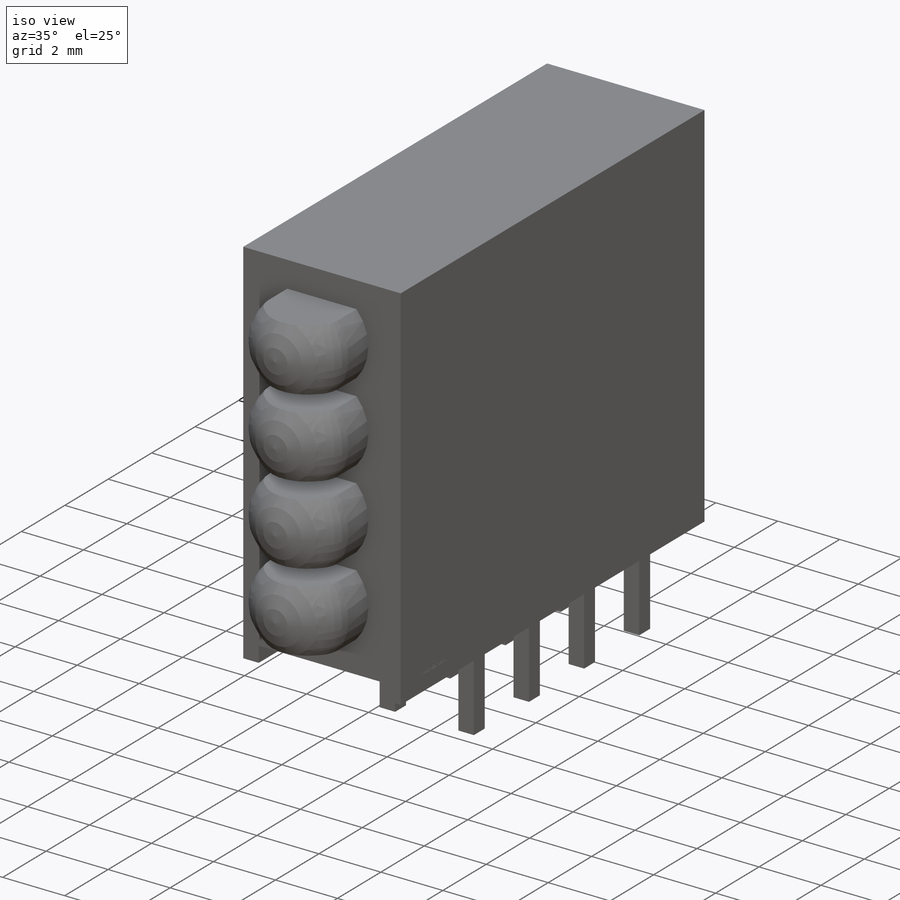
[diagram: iso view]
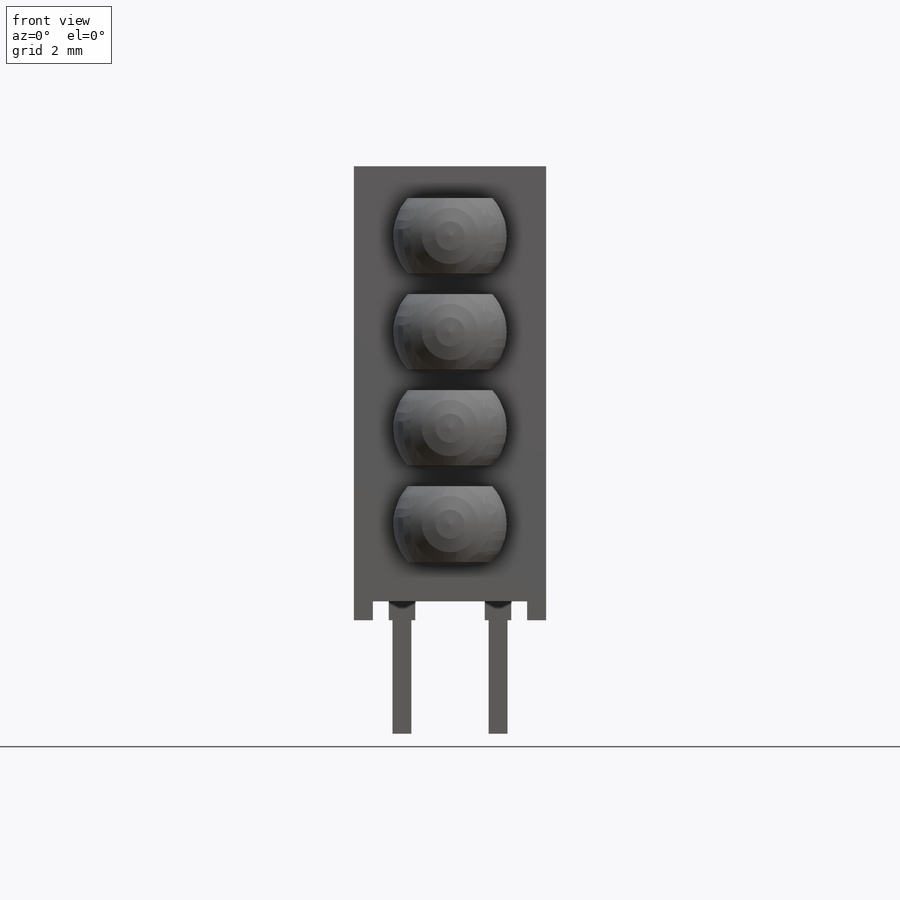
[diagram: front view]
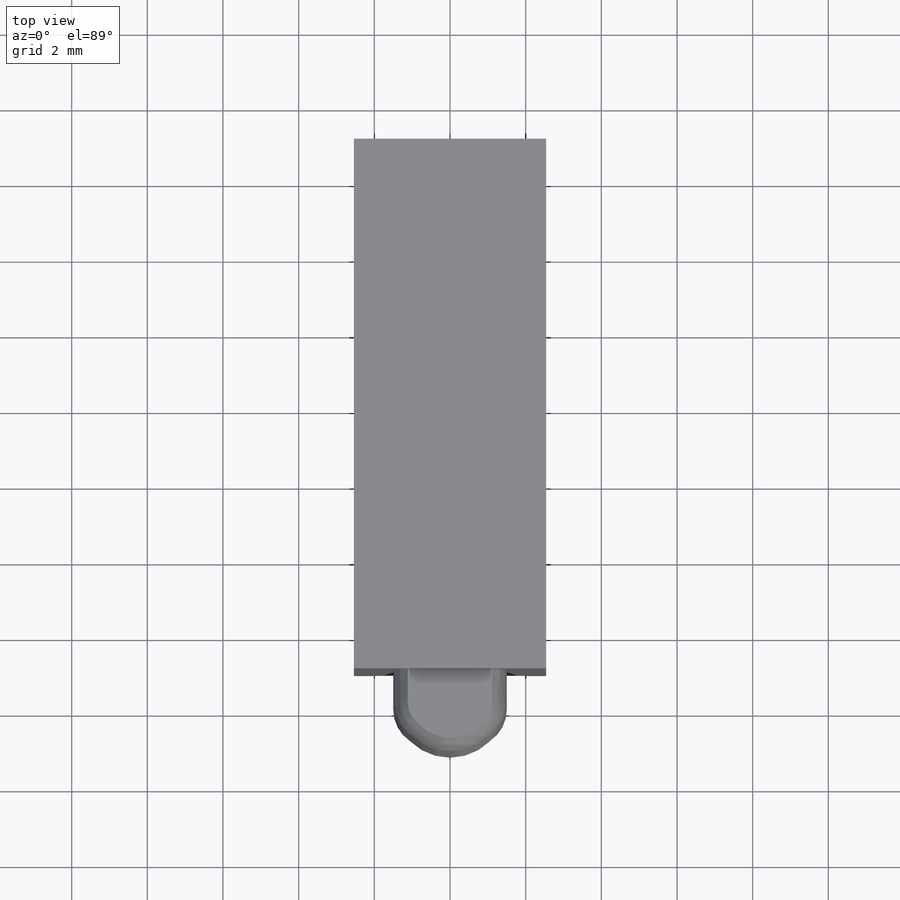
[diagram: top view]
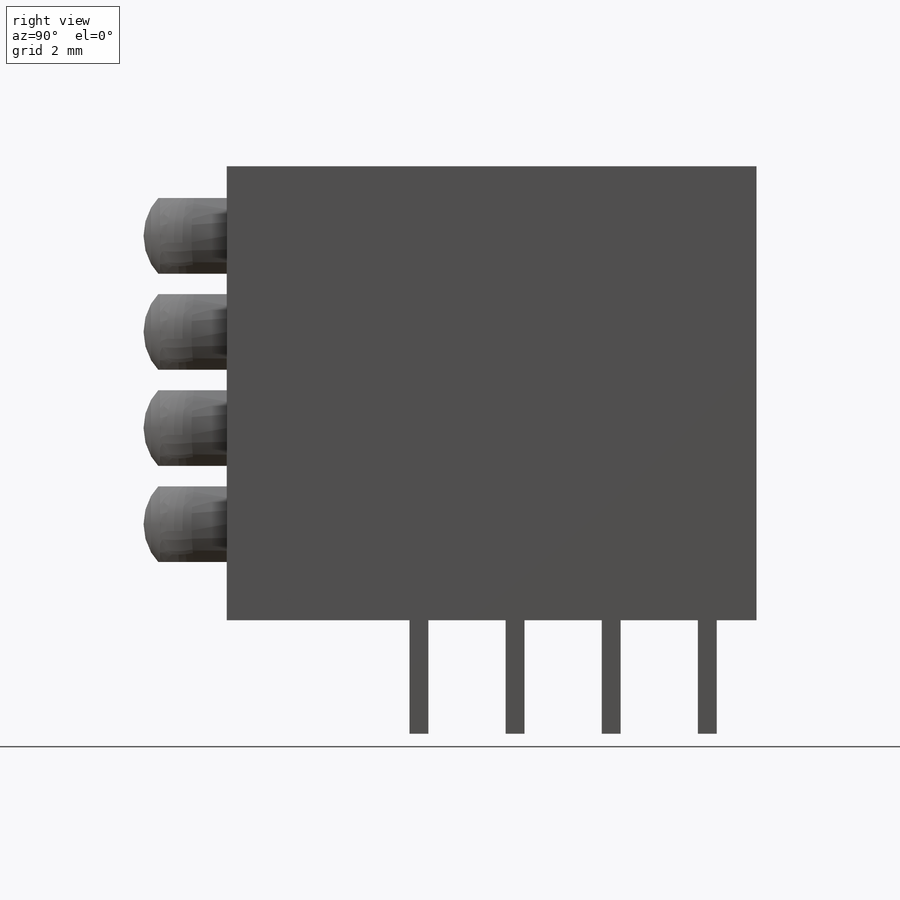
[diagram: right view]
SOLIDWORKS PART (.sldprt)
format: sldprt  version: not decoded by parser v0  size: 837,632 bytes
history: native  units: mm
features: sketch x11, extrude x6, cut_extrude x4, material x1, plane x1, revolve x1, fillet x1, pattern_linear x1 (+11 scaffold rows collapsed)
feature tree (37):
  scaffold x11  (default folders/planes/origin — collapsed)
  material  "Material <not specified>"
  sketch  "Sketch1"  dims[c1.D3=1.0mm c1.D1=12.0mm c1.D2=14.0mm c1.D4=2.0mm c1.D5=2.54mm c1.D6=2.2mm c2.D1=12.0mm c2.D7=2.54mm c2.D8=2.54mm c2.D9=2.54mm c2.D5=2.54mm]
  extrude  "Extrude1"  Depth=5.08mm
  sketch  "Sketch2"  dims[c1.D1=3.9mm c1.D2=1.9mm c1.D3=2.54mm c1.D4=2.54mm c1.D5=2.54mm c1.D6=2.54mm c1.D7=0.5mm c1.D8=0.5mm c1.D9=0.5mm c2.D1=0.5mm]
  cut_extrude  "Cut-Extrude1"  [1 undecoded]
  sketch  "Sketch3"  dims[c1.D1=0.5mm c1.D2=0.5mm c1.D3=0.5mm c1.D4=0.5mm c1.D5=0.5mm c1.D6=2.54mm c1.D7=0.5mm c2.D7=90.0deg c3.D7=2.54mm c3.D8=0.5mm c4.D8=90.0deg c5.D8=2.54mm c5.D9=7.39mm c5.D10=2.54mm c5.D1=0.5mm c5.D2=0.5mm c5.D3=2.54mm c5.D4=2.54mm c5.D5=2.54mm c5.D6=2.54mm c5.D7=2.54mm c6.D8=3.84mm c6.D3=5.08mm c7.D8=0.7mm]
  extrude  "Extrude4"  [1 undecoded]
  sketch  "Sketch3<3>"
  extrude  "Extrude6"  Depth=3mm
  sketch  "Sketch4"  dims[D1=3.0mm]
  cut_extrude  "Cut-Extrude7"  Depth=0.01mm
  extrude  "Extrude9"  [1 undecoded]
  sketch  "Sketch3<8>"
  plane  "Plane1"  Offset=2.54mm
  sketch  "Sketch9"  dims[c1.D3=1.5mm c1.D4=1.5mm c1.D2=1.5mm c1.D1=3.0mm c2.D2=4.0mm c2.D3=2.2mm c2.D4=2.5mm c2.D1=3.0mm]
  revolve  "Revolve3"  Angle=360deg
  sketch  "Sketch10"  dims[D1=2.0mm]
  cut_extrude  "Cut-Extrude9"  [1 undecoded]
  sketch  "Sketch11"  dims[D1=0.1mm D2=0.1mm]
  extrude  "Extrude10"  Depth=0.9mm
  sketch  "Sketch12"  dims[D3=1.5mm D1=~0.345662mm D2=~1.120896mm]
  extrude  "Extrude11"  Depth=3mm
  sketch  "Sketch13"
  cut_extrude  "Cut-Extrude10"  [1 undecoded]
  fillet  "Fillet1"  Radius=1mm
  pattern_linear  "LPattern2"  Count1=4 Count2=1 Spacing1=2.54mm Spacing2=50mm
decode coverage: 16 of 24 modeling features carry decoded parameters
note: ~ marks probable driven/reference dimensions
note: 5 parameter values undecoded
summary: no parameter record found for 5 features
note: suppression state not decoded; provenance and decode notes live in map.json
